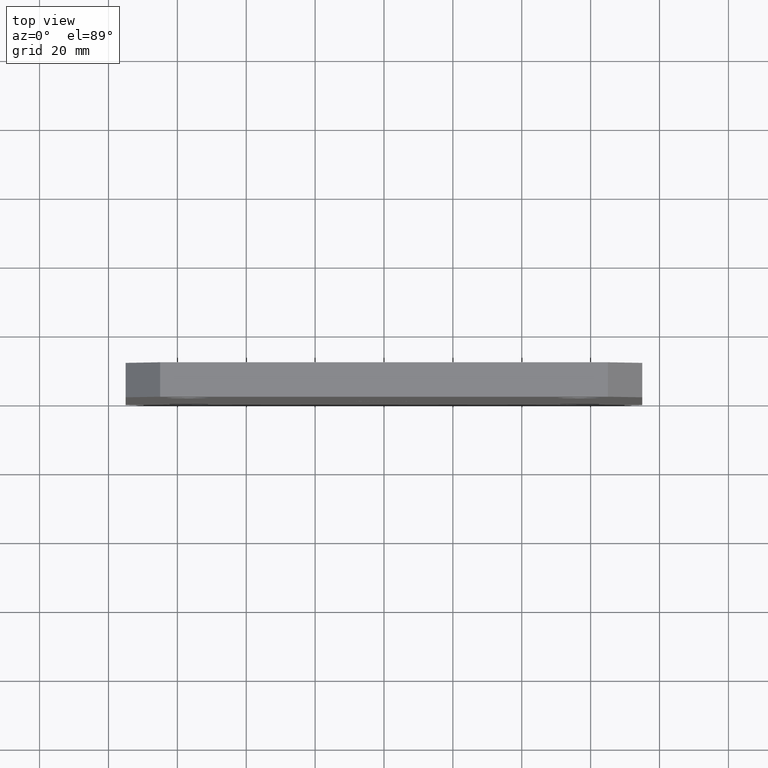
[diagram: clean part render]
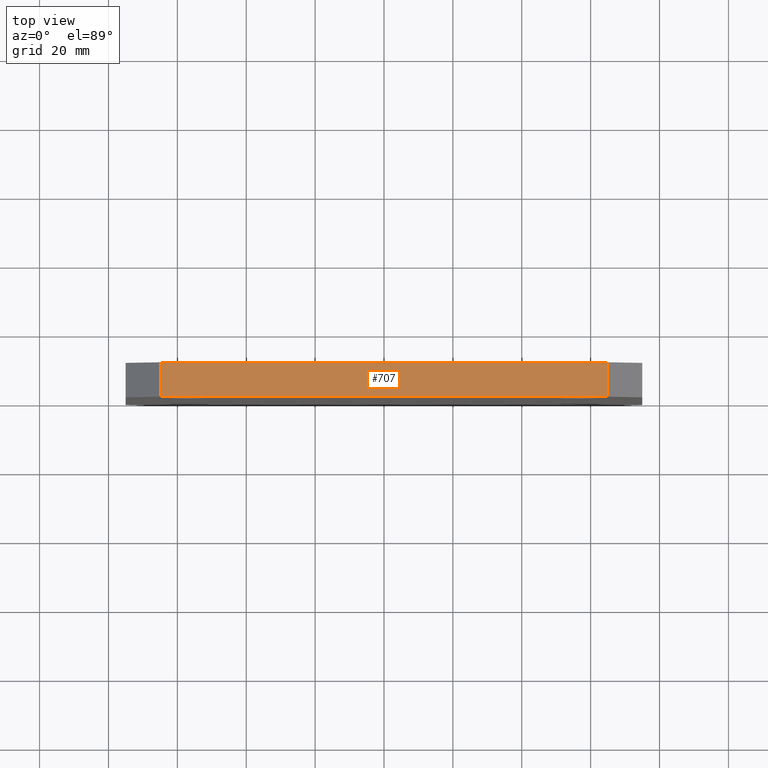
[diagram: same view with one face highlighted and labeled with its STEP entity id]
A machine part, top view. The second image highlights one B-rep face of the part: STEP entity #707.
In plain terms, the highlighted planar face has unit normal (0, 0, -1).
Its self-contained STEP definition (entity closure, byte-faithful):
#9 = VECTOR ( 'NONE', #1758, 1000.000000000000000 ) ;
#456 = LINE ( 'NONE', #9142, #2581 ) ;
#571 = DIRECTION ( 'NONE',  ( 1.000000000000000000, 0.0000000000000000000, 0.0000000000000000000 ) ) ;
#707 = ADVANCED_FACE ( 'NONE', ( #10161 ), #955, .F. ) ;
#955 = PLANE ( 'NONE',  #10743 ) ;
#1225 = EDGE_LOOP ( 'NONE', ( #2338, #8234, #2432, #6029 ) ) ;
#1758 = DIRECTION ( 'NONE',  ( 0.0000000000000000000, 1.000000000000000000, 0.0000000000000000000 ) ) ;
#1804 = EDGE_CURVE ( 'NONE', #10048, #7567, #7936, .T. ) ;
#1870 = CARTESIAN_POINT ( 'NONE',  ( -75.00000000000000000, 10.00000000000000000, 75.00000000000001400 ) ) ;
#2338 = ORIENTED_EDGE ( 'NONE', *, *, #3734, .F. ) ;
#2344 = LINE ( 'NONE', #10500, #3319 ) ;
#2432 = ORIENTED_EDGE ( 'NONE', *, *, #4119, .T. ) ;
#2470 = CARTESIAN_POINT ( 'NONE',  ( 64.99999999999998600, 0.0000000000000000000, 75.00000000000001400 ) ) ;
#2581 = VECTOR ( 'NONE', #10218, 1000.000000000000000 ) ;
#2737 = CARTESIAN_POINT ( 'NONE',  ( -65.00000000000004300, 0.0000000000000000000, 75.00000000000001400 ) ) ;
#3319 = VECTOR ( 'NONE', #571, 1000.000000000000000 ) ;
#3689 = DIRECTION ( 'NONE',  ( -1.000000000000000000, 0.0000000000000000000, -0.0000000000000000000 ) ) ;
#3734 = EDGE_CURVE ( 'NONE', #9305, #7567, #4459, .T. ) ;
#4119 = EDGE_CURVE ( 'NONE', #10084, #10048, #2344, .T. ) ;
#4459 = LINE ( 'NONE', #9144, #6398 ) ;
#5999 = EDGE_CURVE ( 'NONE', #9305, #10084, #456, .T. ) ;
#6029 = ORIENTED_EDGE ( 'NONE', *, *, #1804, .T. ) ;
#6137 = CARTESIAN_POINT ( 'NONE',  ( 64.99999999999994300, 10.00000000000000000, 75.00000000000002800 ) ) ;
#6398 = VECTOR ( 'NONE', #8170, 1000.000000000000000 ) ;
#6459 = DIRECTION ( 'NONE',  ( 0.0000000000000000000, 0.0000000000000000000, -1.000000000000000000 ) ) ;
#7567 = VERTEX_POINT ( 'NONE', #6137 ) ;
#7936 = LINE ( 'NONE', #11345, #9 ) ;
#8170 = DIRECTION ( 'NONE',  ( 1.000000000000000000, 0.0000000000000000000, 0.0000000000000000000 ) ) ;
#8234 = ORIENTED_EDGE ( 'NONE', *, *, #5999, .T. ) ;
#9142 = CARTESIAN_POINT ( 'NONE',  ( -65.00000000000004300, 10.00000000000000000, 75.00000000000001400 ) ) ;
#9144 = CARTESIAN_POINT ( 'NONE',  ( -75.00000000000000000, 10.00000000000000000, 75.00000000000001400 ) ) ;
#9305 = VERTEX_POINT ( 'NONE', #11102 ) ;
#10048 = VERTEX_POINT ( 'NONE', #2470 ) ;
#10084 = VERTEX_POINT ( 'NONE', #2737 ) ;
#10161 = FACE_OUTER_BOUND ( 'NONE', #1225, .T. ) ;
#10218 = DIRECTION ( 'NONE',  ( 0.0000000000000000000, -1.000000000000000000, 0.0000000000000000000 ) ) ;
#10500 = CARTESIAN_POINT ( 'NONE',  ( -75.00000000000000000, 0.0000000000000000000, 75.00000000000001400 ) ) ;
#10743 = AXIS2_PLACEMENT_3D ( 'NONE', #1870, #6459, #3689 ) ;
#11102 = CARTESIAN_POINT ( 'NONE',  ( -65.00000000000002800, 10.00000000000000000, 75.00000000000001400 ) ) ;
#11345 = CARTESIAN_POINT ( 'NONE',  ( 64.99999999999998600, 10.00000000000000000, 75.00000000000001400 ) ) ;